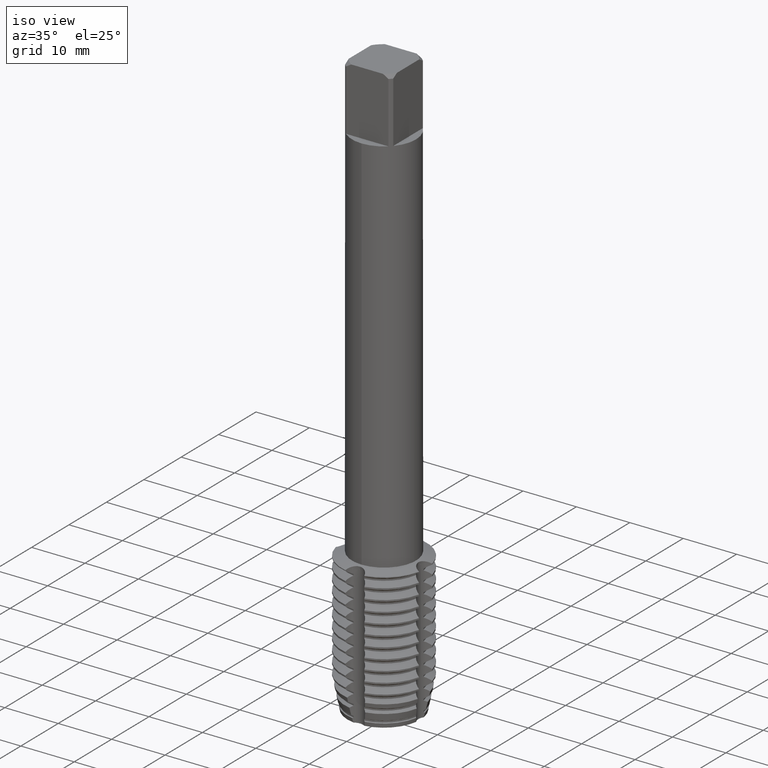
[diagram: clean part render]
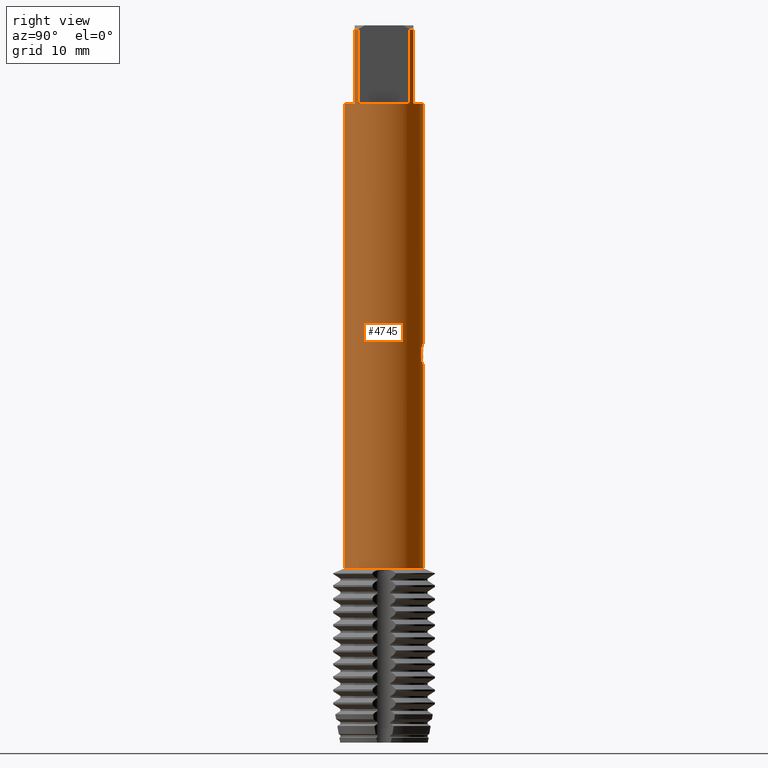
[diagram: tour spotlight — one face highlighted and labeled with its STEP entity id]
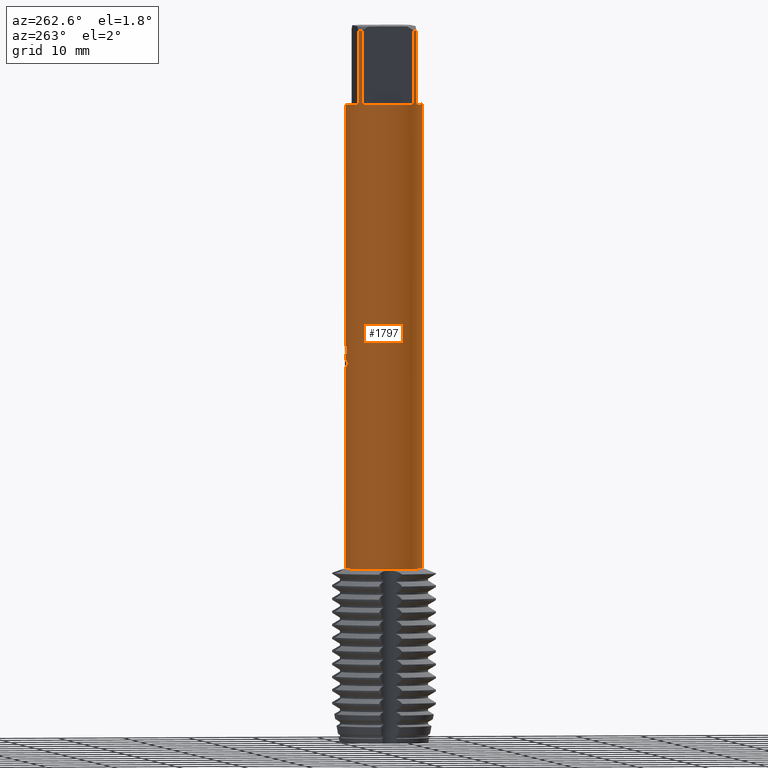
[diagram: tour spotlight — one face highlighted and labeled with its STEP entity id]
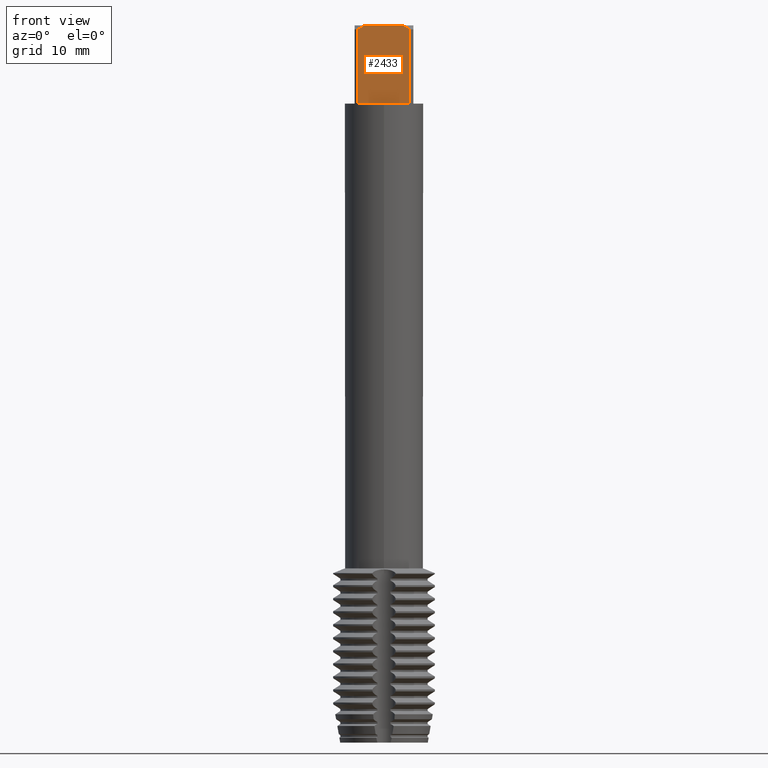
[diagram: tour spotlight — one face highlighted and labeled with its STEP entity id]
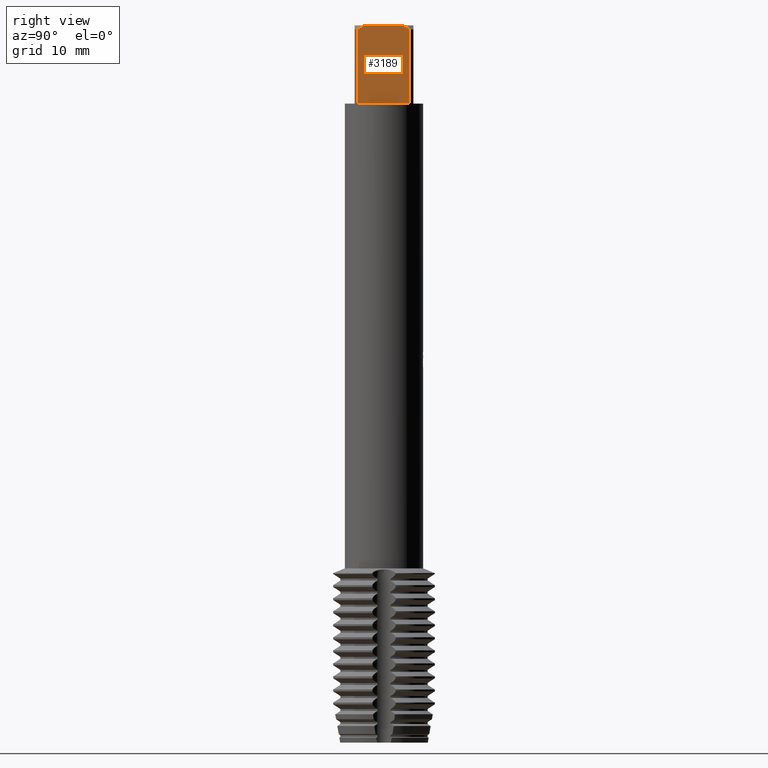
[diagram: tour spotlight — one face highlighted and labeled with its STEP entity id]
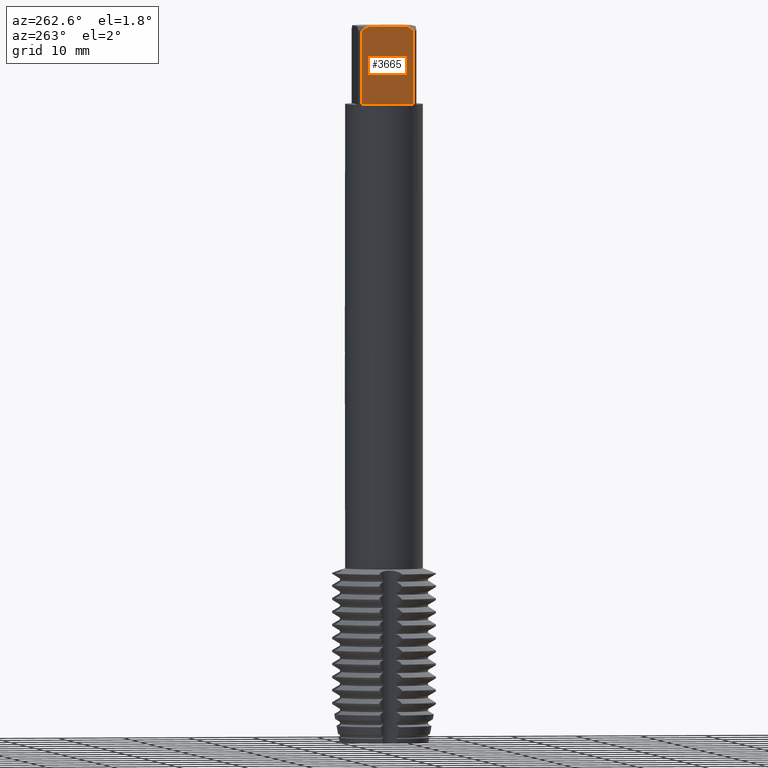
[diagram: tour spotlight — one face highlighted and labeled with its STEP entity id]
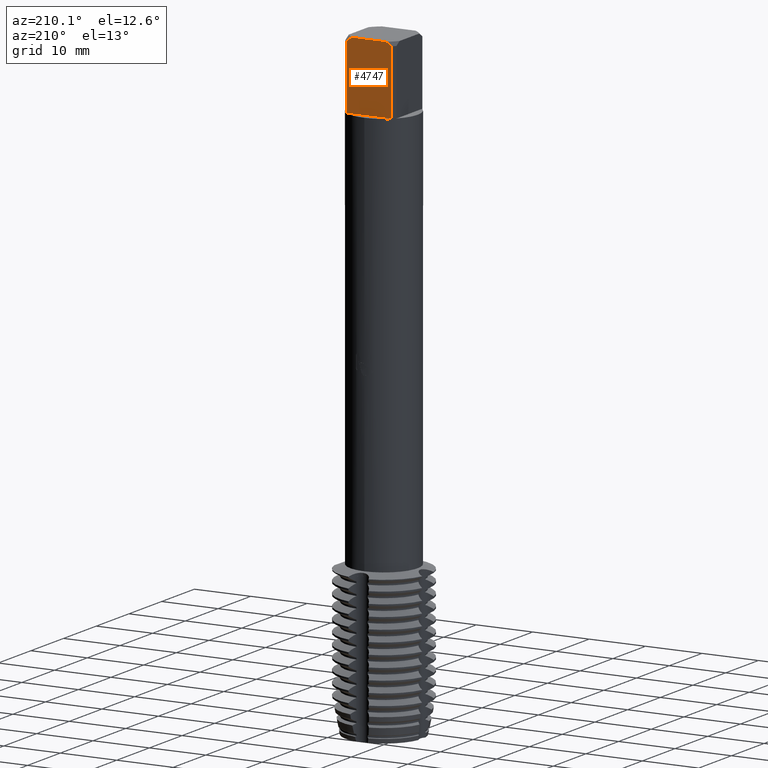
[diagram: tour spotlight — one face highlighted and labeled with its STEP entity id]
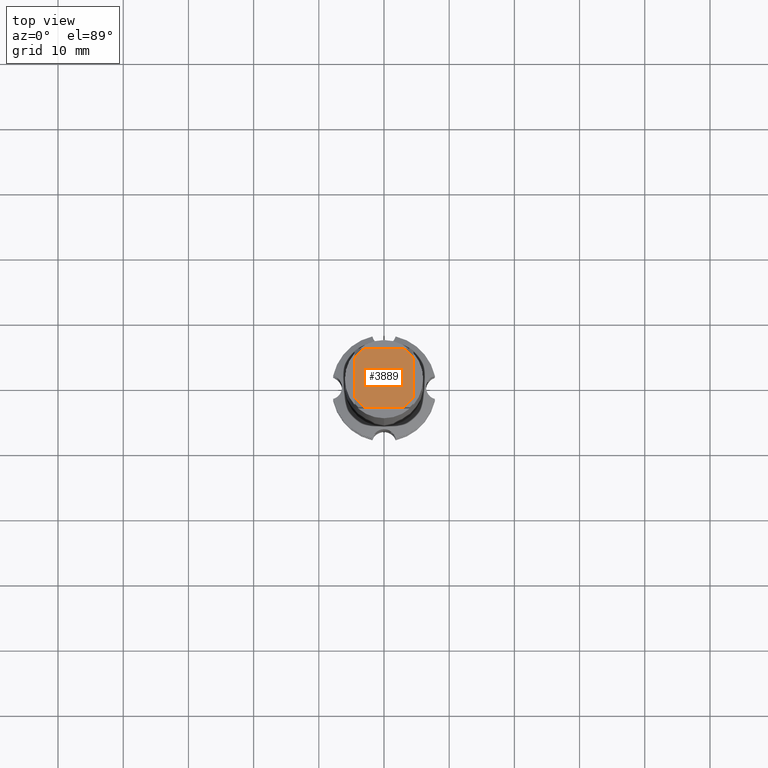
[diagram: tour spotlight — one face highlighted and labeled with its STEP entity id]
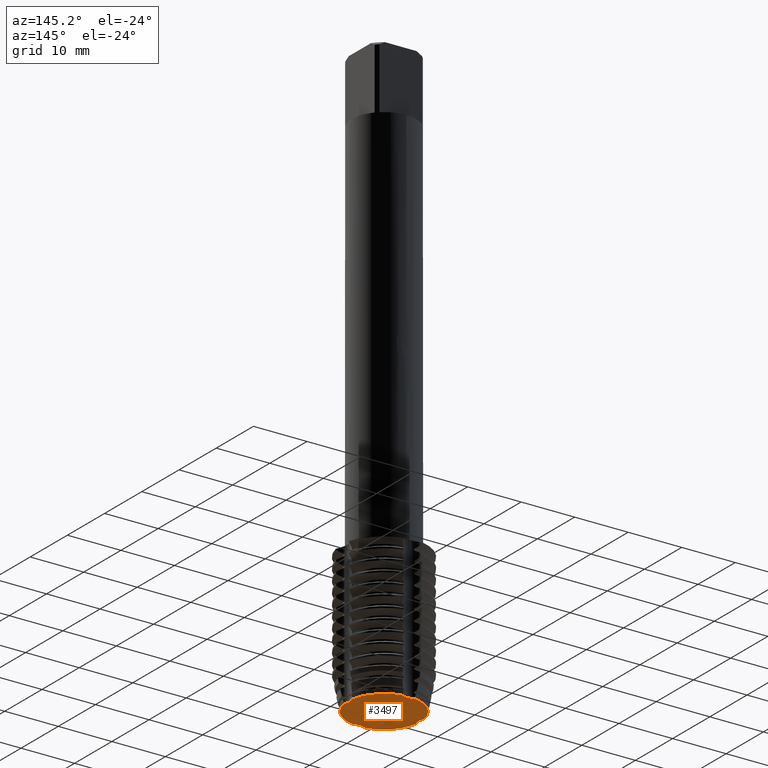
[diagram: tour spotlight — one face highlighted and labeled with its STEP entity id]
A machine part: a face-by-face anatomy tour. The part has 273 B-rep faces; the first image is the clean iso view, then the 8 largest visible faces are spotlighted one at a time (largest first), each with its STEP entity span.

Face 1 — right view, entity #4745. In plain terms, the highlighted cylindrical surface (partial cylindrical patch) has radius 6 mm, axis along (-0, -0, 1).
Definition (entity closure, byte-faithful):
#1879=EDGE_CURVE('',#2661,#2061,#5124,.T.);
#2001=EDGE_CURVE('',#4703,#2573,#5259,.T.);
#2061=VERTEX_POINT('',#5324);
#2301=VERTEX_POINT('',#5583);
#2371=EDGE_CURVE('',#3017,#2661,#5663,.T.);
#2573=VERTEX_POINT('',#5883);
#2597=VERTEX_POINT('',#5908);
#2661=VERTEX_POINT('',#5975);
#2719=EDGE_CURVE('',#3011,#4215,#6039,.T.);
#2799=EDGE_CURVE('',#4215,#4185,#6132,.T.);
#2803=VERTEX_POINT('',#6136);
#2869=EDGE_CURVE('',#3571,#4703,#6208,.T.);
#2939=VERTEX_POINT('',#6284);
#3011=VERTEX_POINT('',#6362);
#3017=VERTEX_POINT('',#6368);
#3057=EDGE_CURVE('',#4081,#3011,#6410,.T.);
#3067=VERTEX_POINT('',#6420);
#3079=EDGE_CURVE('',#3841,#2597,#6434,.T.);
#3163=EDGE_CURVE('',#3067,#2301,#6521,.T.);
#3169=VERTEX_POINT('',#6527);
#3227=EDGE_CURVE('',#3169,#3067,#6593,.T.);
#3253=VERTEX_POINT('',#6620);
#3425=EDGE_CURVE('',#4679,#2939,#6803,.T.);
#3571=VERTEX_POINT('',#6963);
#3749=EDGE_CURVE('',#3841,#2803,#7156,.T.);
#3769=EDGE_CURVE('',#3253,#4535,#7177,.T.);
#3805=EDGE_CURVE('',#4185,#3169,#7215,.T.);
#3841=VERTEX_POINT('',#7257);
#3953=EDGE_CURVE('',#2061,#3571,#7373,.T.);
#4081=VERTEX_POINT('',#7512);
#4185=VERTEX_POINT('',#7624);
#4215=VERTEX_POINT('',#7655);
#4233=EDGE_CURVE('',#2301,#3253,#7674,.T.);
#4265=EDGE_CURVE('',#2597,#3017,#7710,.T.);
#4323=EDGE_CURVE('',#4535,#2939,#7779,.T.);
#4373=EDGE_CURVE('',#2803,#4679,#7832,.T.);
#4465=EDGE_CURVE('',#4081,#2573,#7936,.T.);
#4535=VERTEX_POINT('',#8010);
#4679=VERTEX_POINT('',#8166);
#4703=VERTEX_POINT('',#8192);
#4745=ADVANCED_FACE('',(#8238),#8239,.T.);
#5124=B_SPLINE_CURVE_WITH_KNOTS('',3,(#8840,#8841,#8842,#8843,#8844,#8845,#8846,#8847,#8848,#8849),.UNSPECIFIED.,.F.,.F.,(4,2,2,2,4),(9.6477472606945,10.0184419028198,10.3891365449451,10.7602144985914,11.1312924522378),.UNSPECIFIED.);
#5259=B_SPLINE_CURVE_WITH_KNOTS('',3,(#9149,#9150,#9151,#9152,#9153,#9154,#9155,#9156,#9157,#9158,#9159,#9160,#9161,#9162,#9163,#9164,#9165,#9166,#9167,#9168,#9169,#9170,#9171,#9172,#9173,#9174,#9175),.UNSPECIFIED.,.F.,.F.,(4,2,3,2,2,2,2,2,2,2,2,2,4),(-0.650983325762088,-0.325491662881044,0.0,0.325491662881044,0.650983325762087,0.977158577924335,1.30333383008658,1.62836215157752,1.95339047306846,2.27875720438135,2.60412393569424,2.92949066700713,3.25485739832002),.UNSPECIFIED.);
#5324=CARTESIAN_POINT('',(1.6046520781759,5.78144373906776,-51.5731988403909));
#5583=CARTESIAN_POINT('',(4.5,-3.96862696659689,-0.600000000000001));
#5663=LINE('',#9941,#9942);
#5883=CARTESIAN_POINT('',(4.49807566984029E-015,6.0,-50.0529225741292));
#5908=CARTESIAN_POINT('',(0.348123752442997,5.98989230729443,-52.4247994788274));
#5975=CARTESIAN_POINT('',(1.04827293811075,5.90771731273803,-52.1354822149837));
#6039=LINE('',#10634,#10635);
#6132=CIRCLE('',#10816,6.0);
#6136=CARTESIAN_POINT('',(0.0,6.0,-83.278312163513));
#6208=B_SPLINE_CURVE_WITH_KNOTS('',3,(#10949,#10950,#10951,#10952,#10953,#10954,#10955,#10956,#10957,#10958),.UNSPECIFIED.,.F.,.F.,(4,2,2,2,4),(0.74215593308256,1.11323389962384,1.48431186616512,1.85500652080361,2.2257011754421),.UNSPECIFIED.);
#6284=CARTESIAN_POINT('',(7.34763812293426E-016,-6.0,-12.0));
#6362=CARTESIAN_POINT('',(3.96862696659689,4.5,-12.0));
#6368=CARTESIAN_POINT('',(1.04827293811075,5.90771731273803,-50.4088717915309));
#6410=CIRCLE('',#11347,6.0);
#6420=CARTESIAN_POINT('',(4.5,-3.96862696659689,-12.0));
#6434=B_SPLINE_CURVE_WITH_KNOTS('',3,(#11408,#11409,#11410,#11411,#11412,#11413,#11414,#11415,#11416,#11417,#11418,#11419,#11420,#11421,#11422,#11423),.UNSPECIFIED.,.F.,.F.,(4,2,2,2,2,2,2,4),(7.05021077803305,7.42137279253829,7.792619300654,8.16386580876971,8.53511231688542,8.90635882500113,9.27705350054317,9.64774817608521),.UNSPECIFIED.);
#6521=LINE('',#11619,#11620);
#6527=CARTESIAN_POINT('',(4.5,3.96862696659689,-12.0));
#6593=CIRCLE('',#11757,6.0);
#6620=CARTESIAN_POINT('',(3.96862696659689,-4.5,-0.600000000000001));
#6803=LINE('',#12137,#12138);
#6963=CARTESIAN_POINT('',(1.6046520781759,5.78144373906776,-49.4430581237785));
#7156=LINE('',#12778,#12779);
#7177=LINE('',#12806,#12807);
#7215=LINE('',#12868,#12869);
#7257=CARTESIAN_POINT('',(-2.49306829930475E-015,6.0,-52.462230432124));
#7373=LINE('',#13190,#13191);
#7512=CARTESIAN_POINT('',(-7.34763812293426E-016,6.0,-12.0));
#7624=CARTESIAN_POINT('',(4.5,3.96862696659689,-0.600000000000001));
#7655=CARTESIAN_POINT('',(3.96862696659689,4.5,-0.600000000000001));
#7674=CIRCLE('',#13789,6.0);
#7710=ELLIPSE('',#13849,18.2879674402186,6.0);
#7779=CIRCLE('',#13954,6.0);
#7832=CIRCLE('',#14049,6.0);
#7936=LINE('',#14240,#14241);
#8010=CARTESIAN_POINT('',(3.96862696659689,-4.5,-12.0));
#8166=CARTESIAN_POINT('',(7.34763812293426E-016,-6.0,-83.278312163513));
#8192=CARTESIAN_POINT('',(0.959318071661238,5.92281257827598,-48.8250003322476));
#8238=FACE_OUTER_BOUND('',#14873,.T.);
#8239=CYLINDRICAL_SURFACE('',#14874,6.0);
#8840=CARTESIAN_POINT('',(0.716083857732902,5.95711540165996,-52.3128424316858));
#8841=CARTESIAN_POINT('',(0.836328499172276,5.94266121693126,-52.2628634346158));
#8842=CARTESIAN_POINT('',(0.951395614063227,5.92507410301736,-52.2007637580905));
#8843=CARTESIAN_POINT('',(1.16394695133533,5.88700978726267,-52.0576209229708));
#8844=CARTESIAN_POINT('',(1.2614305683399,5.86656862180443,-51.9765672851817));
#8845=CARTESIAN_POINT('',(1.43402151205536,5.82678581952974,-51.8040390791293));
#8846=CARTESIAN_POINT('',(1.51514875819765,5.80601755401519,-51.7065145336745));
#8847=CARTESIAN_POINT('',(1.65839450310531,5.76673592856788,-51.493918337062));
#8848=CARTESIAN_POINT('',(1.72052516314967,5.74826344553995,-51.3788473293542));
#8849=CARTESIAN_POINT('',(1.77053560391516,5.73281812682635,-51.2585915795111));
#9149=CARTESIAN_POINT('',(0.798147324109406,5.94667645403859,-48.6013156148974));
#9150=CARTESIAN_POINT('',(0.874482236345515,5.93643098223459,-48.6777332727883));
#9151=CARTESIAN_POINT('',(0.940756999324154,5.92595697693717,-48.7745323243175));
#9152=CARTESIAN_POINT('',(1.02876232015548,5.91131439995525,-48.9868937007967));
#9153=CARTESIAN_POINT('',(1.05048117742628,5.90732505419103,-49.1024731941438));
#9154=CARTESIAN_POINT('',(1.05048117742628,5.90732505419103,-49.2109704151041));
#9155=CARTESIAN_POINT('',(1.05048117742628,5.90732505419103,-49.3194676360645));
#9156=CARTESIAN_POINT('',(1.02876232015548,5.91131439995525,-49.4350471294115));
#9157=CARTESIAN_POINT('',(0.940756999324154,5.92595697693717,-49.6474085058908));
#9158=CARTESIAN_POINT('',(0.874482236345516,5.93643098223459,-49.74420755742));
#9159=CARTESIAN_POINT('',(0.721652095239303,5.95694344312093,-49.8972033636162));
#9160=CARTESIAN_POINT('',(0.624769436538663,5.96833679445731,-49.9636263413674));
#9161=CARTESIAN_POINT('',(0.412204586977029,5.9867744503013,-50.0518404139267));
#9162=CARTESIAN_POINT('',(0.296503463792954,5.99365554898355,-50.0736199233296));
#9163=CARTESIAN_POINT('',(0.0795419974505622,6.00045091866293,-50.0736199233296));
#9164=CARTESIAN_POINT('',(-0.0359824024888451,6.00083305389387,-50.0519772427811));
#9165=CARTESIAN_POINT('',(-0.248451035077011,5.9957955399901,-49.9639927410263));
#9166=CARTESIAN_POINT('',(-0.345400979944834,5.99054136584803,-49.8976553176773));
#9167=CARTESIAN_POINT('',(-0.498563339545003,5.9797436864726,-49.7445990316588));
#9168=CARTESIAN_POINT('',(-0.564987473355022,5.97350408725106,-49.6476247356796));
#9169=CARTESIAN_POINT('',(-0.653117295316085,5.96451169312637,-49.4350429042198));
#9170=CARTESIAN_POINT('',(-0.674817839024696,5.9619309694204,-49.3194259922084));
#9171=CARTESIAN_POINT('',(-0.674817839024696,5.9619309694204,-49.1025148379998));
#9172=CARTESIAN_POINT('',(-0.653117295316089,5.96451169312637,-48.9868979259884));
#9173=CARTESIAN_POINT('',(-0.56498747335503,5.97350408725106,-48.7743160945287));
#9174=CARTESIAN_POINT('',(-0.498563339545003,5.9797436864726,-48.6773417985495));
#9175=CARTESIAN_POINT('',(-0.421942313464863,5.9851453352536,-48.600773836856));
#9941=CARTESIAN_POINT('',(1.04827293811075,5.90771731273803,-51.2721770032573));
#9942=VECTOR('',#16174,1.0);
#10634=CARTESIAN_POINT('',(3.96862696659689,4.5,-6.3));
#10635=VECTOR('',#16542,1.0);
#10816=AXIS2_PLACEMENT_3D('',#16675,#16676,#16677);
#10949=CARTESIAN_POINT('',(1.77053561351404,5.73281812386181,-49.7576654013773));
#10950=CARTESIAN_POINT('',(1.72052517100076,5.74826344320693,-49.6374096473773));
#10951=CARTESIAN_POINT('',(1.65839450878638,5.76673592696772,-49.522338635695));
#10952=CARTESIAN_POINT('',(1.51514875886918,5.80601755387331,-49.3097424317386));
#10953=CARTESIAN_POINT('',(1.43402150988673,5.82678582011051,-49.2122178829142));
#10954=CARTESIAN_POINT('',(1.26143056019417,5.86656862360124,-49.0396896709836));
#10955=CARTESIAN_POINT('',(1.16394693985965,5.88700978959831,-48.9586360304638));
#10956=CARTESIAN_POINT('',(0.951395595326623,5.92507410609222,-48.8154931905186));
#10957=CARTESIAN_POINT('',(0.83632847650457,5.94266122020422,-48.7533935118982));
#10958=CARTESIAN_POINT('',(0.716083830963113,5.95711540487787,-48.7034145131449));
#11347=AXIS2_PLACEMENT_3D('',#16896,#16897,#16898);
#11408=CARTESIAN_POINT('',(-1.65503551119769,5.76722268138439,-51.5999285107443));
#11409=CARTESIAN_POINT('',(-1.58349025649385,5.7877542168453,-51.7061521917117));
#11410=CARTESIAN_POINT('',(-1.50246821010246,5.80951453362685,-51.8035985416379));
#11411=CARTESIAN_POINT('',(-1.33003794248781,5.85139919111814,-51.9760938616887));
#11412=CARTESIAN_POINT('',(-1.23258291619753,5.87302669055419,-52.0571841544536));
#11413=CARTESIAN_POINT('',(-1.02006708647666,5.91364238791968,-52.200414430959));
#11414=CARTESIAN_POINT('',(-0.905006625653233,5.93259463161679,-52.2625651160949));
#11415=CARTESIAN_POINT('',(-0.66447119973702,5.96432679182753,-52.3626338304394));
#11416=CARTESIAN_POINT('',(-0.538788864715804,5.97710869125716,-52.4006308827471));
#11417=CARTESIAN_POINT('',(-0.285445708273923,5.99455106705073,-52.4505843365277));
#11418=CARTESIAN_POINT('',(-0.157781448335137,5.99920151261667,-52.4625268002104));
#11419=CARTESIAN_POINT('',(0.0895283006729495,6.00060438338305,-52.4625268002104));
#11420=CARTESIAN_POINT('',(0.217054807719713,5.99741291517916,-52.4506191753156));
#11421=CARTESIAN_POINT('',(0.470208825690184,5.98289044901793,-52.4007601052382));
#11422=CARTESIAN_POINT('',(0.595839534276319,5.97156955488298,-52.3628219543455));
#11423=CARTESIAN_POINT('',(0.716084185808332,5.95711536222316,-52.3128429528748));
#11619=CARTESIAN_POINT('',(4.5,-3.96862696659689,-6.3));
#11620=VECTOR('',#16956,1.0);
#11757=AXIS2_PLACEMENT_3D('',#17034,#17035,#17036);
#12137=CARTESIAN_POINT('',(7.34763812293426E-016,-6.0,-69.5391560817565));
#12138=VECTOR('',#17199,1.0);
#12778=CARTESIAN_POINT('',(-7.34763812293426E-016,6.0,-69.5391560817565));
#12779=VECTOR('',#17578,1.0);
#12806=CARTESIAN_POINT('',(3.96862696659689,-4.5,-6.3));
#12807=VECTOR('',#17592,1.0);
#12868=CARTESIAN_POINT('',(4.5,3.96862696659689,-6.3));
#12869=VECTOR('',#17621,1.0);
#13190=CARTESIAN_POINT('',(1.6046520781759,5.78144373906776,-50.5081284820847));
#13191=VECTOR('',#17770,1.0);
#13789=AXIS2_PLACEMENT_3D('',#18047,#18048,#18049);
#13849=AXIS2_PLACEMENT_3D('',#18093,#18094,#18095);
#13954=AXIS2_PLACEMENT_3D('',#18313,#18314,#18315);
#14049=AXIS2_PLACEMENT_3D('',#18358,#18359,#18360);
#14240=CARTESIAN_POINT('',(-7.34763812293426E-016,6.0,-69.5391560817565));
#14241=VECTOR('',#18485,1.0);
#14873=EDGE_LOOP('',(#18732,#18733,#18734,#18735,#18736,#18737,#18738,#18739,#18740,#18741,#18742,#18743,#18744,#18745,#18746,#18747,#18748,#18749,#18750,#18751));
#14874=AXIS2_PLACEMENT_3D('',#18752,#18753,#18754);
#16174=DIRECTION('',(0.0,0.0,-1.0));
#16542=DIRECTION('',(-0.0,-0.0,1.0));
#16675=CARTESIAN_POINT('',(0.0,0.0,-0.600000000000001));
#16676=DIRECTION('',(0.0,0.0,-1.0));
#16677=DIRECTION('',(0.0,1.0,0.0));
#16896=CARTESIAN_POINT('',(0.0,0.0,-12.0));
#16897=DIRECTION('',(0.0,0.0,-1.0));
#16898=DIRECTION('',(0.0,1.0,0.0));
#16956=DIRECTION('',(-0.0,-0.0,1.0));
#17034=CARTESIAN_POINT('',(0.0,0.0,-12.0));
#17035=DIRECTION('',(0.0,0.0,-1.0));
#17036=DIRECTION('',(0.0,1.0,0.0));
#17199=DIRECTION('',(-0.0,-0.0,1.0));
#17578=DIRECTION('',(0.0,0.0,-1.0));
#17592=DIRECTION('',(0.0,0.0,-1.0));
#17621=DIRECTION('',(0.0,0.0,-1.0));
#17770=DIRECTION('',(-0.0,-0.0,1.0));
#18047=CARTESIAN_POINT('',(0.0,0.0,-0.600000000000001));
#18048=DIRECTION('',(0.0,0.0,-1.0));
#18049=DIRECTION('',(0.0,1.0,0.0));
#18093=CARTESIAN_POINT('',(0.0,0.0,-53.4271463007922));
#18094=DIRECTION('',(0.944648353914092,0.0,-0.328084573619969));
#18095=DIRECTION('',(0.328084573619969,-0.0,0.944648353914092));
#18313=CARTESIAN_POINT('',(0.0,0.0,-12.0));
#18314=DIRECTION('',(0.0,0.0,-1.0));
#18315=DIRECTION('',(0.0,1.0,0.0));
#18358=CARTESIAN_POINT('',(0.0,0.0,-83.278312163513));
#18359=DIRECTION('',(0.0,0.0,-1.0));
#18360=DIRECTION('',(0.0,1.0,0.0));
#18485=DIRECTION('',(0.0,0.0,-1.0));
#18732=ORIENTED_EDGE('',*,*,#4465,.F.);
#18733=ORIENTED_EDGE('',*,*,#3057,.T.);
#18734=ORIENTED_EDGE('',*,*,#2719,.T.);
#18735=ORIENTED_EDGE('',*,*,#2799,.T.);
#18736=ORIENTED_EDGE('',*,*,#3805,.T.);
#18737=ORIENTED_EDGE('',*,*,#3227,.T.);
#18738=ORIENTED_EDGE('',*,*,#3163,.T.);
#18739=ORIENTED_EDGE('',*,*,#4233,.T.);
#18740=ORIENTED_EDGE('',*,*,#3769,.T.);
#18741=ORIENTED_EDGE('',*,*,#4323,.T.);
#18742=ORIENTED_EDGE('',*,*,#3425,.F.);
#18743=ORIENTED_EDGE('',*,*,#4373,.F.);
#18744=ORIENTED_EDGE('',*,*,#3749,.F.);
#18745=ORIENTED_EDGE('',*,*,#3079,.T.);
#18746=ORIENTED_EDGE('',*,*,#4265,.T.);
#18747=ORIENTED_EDGE('',*,*,#2371,.T.);
#18748=ORIENTED_EDGE('',*,*,#1879,.T.);
#18749=ORIENTED_EDGE('',*,*,#3953,.T.);
#18750=ORIENTED_EDGE('',*,*,#2869,.T.);
#18751=ORIENTED_EDGE('',*,*,#2001,.T.);
#18752=CARTESIAN_POINT('',(0.0,0.0,-69.5391560817565));
#18753=DIRECTION('',(-0.0,-0.0,1.0));
#18754=DIRECTION('',(0.0,1.0,0.0));

Face 2 — auxiliary view, entity #1797. In plain terms, the highlighted cylindrical surface (partial cylindrical patch) has radius 6 mm, axis along (-0, -0, 1).
Definition (entity closure, byte-faithful):
#1731=VERTEX_POINT('',#4962);
#1797=ADVANCED_FACE('',(#5032),#5033,.T.);
#1865=EDGE_CURVE('',#3183,#3405,#5110,.T.);
#2091=VERTEX_POINT('',#5357);
#2199=VERTEX_POINT('',#5473);
#2411=EDGE_CURVE('',#4005,#4487,#5703,.T.);
#2443=EDGE_CURVE('',#3135,#2883,#5737,.T.);
#2573=VERTEX_POINT('',#5883);
#2773=EDGE_CURVE('',#3405,#3841,#6104,.T.);
#2803=VERTEX_POINT('',#6136);
#2835=EDGE_CURVE('',#3711,#4349,#6172,.T.);
#2883=VERTEX_POINT('',#6223);
#2935=VERTEX_POINT('',#6279);
#2939=VERTEX_POINT('',#6284);
#3021=VERTEX_POINT('',#6372);
#3099=EDGE_CURVE('',#2939,#4005,#6454,.T.);
#3135=VERTEX_POINT('',#6492);
#3143=EDGE_CURVE('',#3315,#3021,#6500,.T.);
#3183=VERTEX_POINT('',#6542);
#3315=VERTEX_POINT('',#6687);
#3405=VERTEX_POINT('',#6783);
#3425=EDGE_CURVE('',#4679,#2939,#6803,.T.);
#3575=EDGE_CURVE('',#2199,#1731,#6967,.T.);
#3705=EDGE_CURVE('',#2883,#2199,#7109,.T.);
#3711=VERTEX_POINT('',#7115);
#3749=EDGE_CURVE('',#3841,#2803,#7156,.T.);
#3841=VERTEX_POINT('',#7257);
#3911=EDGE_CURVE('',#2935,#2091,#7331,.T.);
#3957=EDGE_CURVE('',#4679,#2803,#7377,.T.);
#4005=VERTEX_POINT('',#7429);
#4029=EDGE_CURVE('',#4349,#3183,#7454,.T.);
#4053=EDGE_CURVE('',#4487,#2935,#7480,.T.);
#4081=VERTEX_POINT('',#7512);
#4197=EDGE_CURVE('',#2091,#3135,#7636,.T.);
#4269=EDGE_CURVE('',#1731,#4081,#7715,.T.);
#4349=VERTEX_POINT('',#7806);
#4465=EDGE_CURVE('',#4081,#2573,#7936,.T.);
#4487=VERTEX_POINT('',#7960);
#4609=EDGE_CURVE('',#3021,#3711,#8090,.T.);
#4679=VERTEX_POINT('',#8166);
#4695=EDGE_CURVE('',#2573,#3315,#8184,.T.);
#4962=CARTESIAN_POINT('',(-3.96862696659689,4.5,-12.0));
#5032=FACE_OUTER_BOUND('',#8672,.T.);
#5033=CYLINDRICAL_SURFACE('',#8673,6.0);
#5110=ELLIPSE('',#8821,6.68957059225716,6.0);
#5357=CARTESIAN_POINT('',(-4.5,-3.96862696659689,-12.0));
#5473=CARTESIAN_POINT('',(-3.96862696659689,4.5,-0.600000000000001));
#5703=LINE('',#10025,#10026);
#5737=LINE('',#10100,#10101);
#5883=CARTESIAN_POINT('',(4.49807566984029E-015,6.0,-50.0529225741292));
#6104=B_SPLINE_CURVE_WITH_KNOTS('',3,(#10756,#10757,#10758,#10759,#10760,#10761,#10762,#10763,#10764,#10765,#10766,#10767,#10768,#10769,#10770,#10771),.UNSPECIFIED.,.F.,.F.,(4,2,2,2,2,2,2,4),(7.05021077803305,7.42137279253829,7.792619300654,8.16386580876971,8.53511231688542,8.90635882500113,9.27705350054317,9.64774817608521),.UNSPECIFIED.);
#6136=CARTESIAN_POINT('',(0.0,6.0,-83.278312163513));
#6172=B_SPLINE_CURVE_WITH_KNOTS('',3,(#10879,#10880,#10881,#10882,#10883,#10884,#10885,#10886,#10887,#10888,#10889,#10890,#10891,#10892,#10893,#10894,#10895,#10896,#10897,#10898),.UNSPECIFIED.,.F.,.F.,(4,2,2,2,2,2,2,2,2,4),(4.02840239043581,4.29680806049396,4.56521373055212,4.83361940061028,5.37043074072659,5.90614431571486,6.17400110320899,6.44185789070312,6.71120407596239,6.98055026122165),.UNSPECIFIED.);
#6223=CARTESIAN_POINT('',(-4.5,3.96862696659689,-0.600000000000001));
#6279=CARTESIAN_POINT('',(-4.5,-3.96862696659689,-0.600000000000001));
#6284=CARTESIAN_POINT('',(7.34763812293426E-016,-6.0,-12.0));
#6372=CARTESIAN_POINT('',(-0.674800788273616,5.96193289933267,-49.2055466384365));
#6454=CIRCLE('',#11467,6.0);
#6492=CARTESIAN_POINT('',(-4.5,3.96862696659689,-12.0));
#6500=B_SPLINE_CURVE_WITH_KNOTS('',3,(#11541,#11542,#11543,#11544,#11545,#11546,#11547,#11548,#11549,#11550,#11551,#11552,#11553,#11554,#11555,#11556,#11557,#11558,#11559,#11560,#11561,#11562,#11563,#11564,#11565,#11566,#11567),.UNSPECIFIED.,.F.,.F.,(4,2,3,2,2,2,2,2,2,2,2,2,4),(-0.650983325762088,-0.325491662881044,0.0,0.325491662881044,0.650983325762087,0.977158577924335,1.30333383008658,1.62836215157752,1.95339047306846,2.27875720438135,2.60412393569424,2.92949066700713,3.25485739832002),.UNSPECIFIED.);
#6542=CARTESIAN_POINT('',(-7.34748625399642E-016,6.0,-50.8804693603894));
#6687=CARTESIAN_POINT('',(-0.583654733259654,5.97154478777005,-49.5969404979607));
#6783=CARTESIAN_POINT('',(-1.6044633029316,5.78149613072134,-51.6714964690554));
#6803=LINE('',#12137,#12138);
#6967=LINE('',#12429,#12430);
#7109=CIRCLE('',#12690,6.0);
#7115=CARTESIAN_POINT('',(-1.24208808469056,5.87002701781429,-49.2055466384365));
#7156=LINE('',#12778,#12779);
#7257=CARTESIAN_POINT('',(-2.49306829930475E-015,6.0,-52.462230432124));
#7331=LINE('',#13087,#13088);
#7377=CIRCLE('',#13204,6.0);
#7429=CARTESIAN_POINT('',(-3.96862696659689,-4.5,-12.0));
#7454=LINE('',#13347,#13348);
#7480=CIRCLE('',#13383,6.0);
#7512=CARTESIAN_POINT('',(-7.34763812293426E-016,6.0,-12.0));
#7636=CIRCLE('',#13694,6.0);
#7715=CIRCLE('',#13855,6.0);
#7806=CARTESIAN_POINT('',(5.00903232975301E-016,6.0,-50.6250961862258));
#7936=LINE('',#14240,#14241);
#7960=CARTESIAN_POINT('',(-3.96862696659689,-4.5,-0.600000000000001));
#8090=CIRCLE('',#14573,6.0);
#8166=CARTESIAN_POINT('',(7.34763812293426E-016,-6.0,-83.278312163513));
#8184=B_SPLINE_CURVE_WITH_KNOTS('',3,(#14756,#14757,#14758,#14759,#14760,#14761,#14762,#14763,#14764,#14765,#14766,#14767,#14768,#14769,#14770,#14771,#14772,#14773,#14774,#14775,#14776,#14777,#14778,#14779,#14780,#14781,#14782),.UNSPECIFIED.,.F.,.F.,(4,2,3,2,2,2,2,2,2,2,2,2,4),(-0.650983325762088,-0.325491662881044,0.0,0.325491662881044,0.650983325762087,0.977158577924335,1.30333383008658,1.62836215157752,1.95339047306846,2.27875720438135,2.60412393569424,2.92949066700713,3.25485739832002),.UNSPECIFIED.);
#8672=EDGE_LOOP('',(#15224,#15225,#15226,#15227,#15228,#15229,#15230,#15231,#15232,#15233,#15234,#15235,#15236,#15237,#15238,#15239,#15240,#15241,#15242,#15243));
#8673=AXIS2_PLACEMENT_3D('',#15244,#15245,#15246);
#8821=AXIS2_PLACEMENT_3D('',#15544,#15545,#15546);
#10025=CARTESIAN_POINT('',(-3.96862696659689,-4.5,-6.3));
#10026=VECTOR('',#16195,1.0);
#10100=CARTESIAN_POINT('',(-4.5,3.96862696659689,-6.3));
#10101=VECTOR('',#16229,1.0);
#10756=CARTESIAN_POINT('',(-1.65503551119769,5.76722268138439,-51.5999285107443));
#10757=CARTESIAN_POINT('',(-1.58349025649385,5.7877542168453,-51.7061521917117));
#10758=CARTESIAN_POINT('',(-1.50246821010246,5.80951453362685,-51.8035985416379));
#10759=CARTESIAN_POINT('',(-1.33003794248781,5.85139919111814,-51.9760938616887));
#10760=CARTESIAN_POINT('',(-1.23258291619753,5.87302669055419,-52.0571841544536));
#10761=CARTESIAN_POINT('',(-1.02006708647666,5.91364238791968,-52.200414430959));
#10762=CARTESIAN_POINT('',(-0.905006625653233,5.93259463161679,-52.2625651160949));
#10763=CARTESIAN_POINT('',(-0.66447119973702,5.96432679182753,-52.3626338304394));
#10764=CARTESIAN_POINT('',(-0.538788864715804,5.97710869125716,-52.4006308827471));
#10765=CARTESIAN_POINT('',(-0.285445708273923,5.99455106705073,-52.4505843365277));
#10766=CARTESIAN_POINT('',(-0.157781448335137,5.99920151261667,-52.4625268002104));
#10767=CARTESIAN_POINT('',(0.0895283006729495,6.00060438338305,-52.4625268002104));
#10768=CARTESIAN_POINT('',(0.217054807719713,5.99741291517916,-52.4506191753156));
#10769=CARTESIAN_POINT('',(0.470208825690184,5.98289044901793,-52.4007601052382));
#10770=CARTESIAN_POINT('',(0.595839534276319,5.97156955488298,-52.3628219543455));
#10771=CARTESIAN_POINT('',(0.716084185808332,5.95711536222316,-52.3128429528748));
#10879=CARTESIAN_POINT('',(-1.21548675278351,5.87559290232125,-48.9428064967385));
#10880=CARTESIAN_POINT('',(-1.23353718120567,5.87185880144904,-49.034658079453));
#10881=CARTESIAN_POINT('',(-1.24213082148224,5.87001797461676,-49.1270936761933));
#10882=CARTESIAN_POINT('',(-1.24213082148224,5.87001797461676,-49.3060307895654));
#10883=CARTESIAN_POINT('',(-1.23353718120567,5.87185880144904,-49.3984663863057));
#10884=CARTESIAN_POINT('',(-1.19743632436134,5.87932700319345,-49.5821695517347));
#10885=CARTESIAN_POINT('',(-1.16993788657455,5.88494794748439,-49.6734391068678));
#10886=CARTESIAN_POINT('',(-1.06101779568533,5.90590459421591,-49.9358046093159));
#10887=CARTESIAN_POINT('',(-0.951704581262653,5.92540632213463,-50.0951914779948));
#10888=CARTESIAN_POINT('',(-0.699968335277633,5.96038253029069,-50.3466228115419));
#10889=CARTESIAN_POINT('',(-0.540672629038556,5.97815385671547,-50.4556864297507));
#10890=CARTESIAN_POINT('',(-0.278552526266265,5.99416975869595,-50.564303954169));
#10891=CARTESIAN_POINT('',(-0.187383281454797,5.99777467036961,-50.5917170354656));
#10892=CARTESIAN_POINT('',(-0.00395643902436742,6.00069977896631,-50.6276902169497));
#10893=CARTESIAN_POINT('',(0.0883028063781633,6.00001454431643,-50.6362423561039));
#10894=CARTESIAN_POINT('',(0.267292045612955,5.99471565472164,-50.6362423561039));
#10895=CARTESIAN_POINT('',(0.359922648777805,5.98990501255664,-50.6275965464116));
#10896=CARTESIAN_POINT('',(0.543858738649497,5.97601238661255,-50.5913695896005));
#10897=CARTESIAN_POINT('',(0.635166547151133,5.96693564402567,-50.5637982219413));
#10898=CARTESIAN_POINT('',(0.722602270894569,5.95632822786807,-50.5274432011969));
#11467=AXIS2_PLACEMENT_3D('',#16922,#16923,#16924);
#11541=CARTESIAN_POINT('',(0.798147324109406,5.94667645403859,-48.6013156148974));
#11542=CARTESIAN_POINT('',(0.874482236345515,5.93643098223459,-48.6777332727883));
#11543=CARTESIAN_POINT('',(0.940756999324154,5.92595697693717,-48.7745323243175));
#11544=CARTESIAN_POINT('',(1.02876232015548,5.91131439995525,-48.9868937007967));
#11545=CARTESIAN_POINT('',(1.05048117742628,5.90732505419103,-49.1024731941438));
#11546=CARTESIAN_POINT('',(1.05048117742628,5.90732505419103,-49.2109704151041));
#11547=CARTESIAN_POINT('',(1.05048117742628,5.90732505419103,-49.3194676360645));
#11548=CARTESIAN_POINT('',(1.02876232015548,5.91131439995525,-49.4350471294115));
#11549=CARTESIAN_POINT('',(0.940756999324154,5.92595697693717,-49.6474085058908));
#11550=CARTESIAN_POINT('',(0.874482236345516,5.93643098223459,-49.74420755742));
#11551=CARTESIAN_POINT('',(0.721652095239303,5.95694344312093,-49.8972033636162));
#11552=CARTESIAN_POINT('',(0.624769436538663,5.96833679445731,-49.9636263413674));
#11553=CARTESIAN_POINT('',(0.412204586977029,5.9867744503013,-50.0518404139267));
#11554=CARTESIAN_POINT('',(0.296503463792954,5.99365554898355,-50.0736199233296));
#11555=CARTESIAN_POINT('',(0.0795419974505622,6.00045091866293,-50.0736199233296));
#11556=CARTESIAN_POINT('',(-0.0359824024888451,6.00083305389387,-50.0519772427811));
#11557=CARTESIAN_POINT('',(-0.248451035077011,5.9957955399901,-49.9639927410263));
#11558=CARTESIAN_POINT('',(-0.345400979944834,5.99054136584803,-49.8976553176773));
#11559=CARTESIAN_POINT('',(-0.498563339545003,5.9797436864726,-49.7445990316588));
#11560=CARTESIAN_POINT('',(-0.564987473355022,5.97350408725106,-49.6476247356796));
#11561=CARTESIAN_POINT('',(-0.653117295316085,5.96451169312637,-49.4350429042198));
#11562=CARTESIAN_POINT('',(-0.674817839024696,5.9619309694204,-49.3194259922084));
#11563=CARTESIAN_POINT('',(-0.674817839024696,5.9619309694204,-49.1025148379998));
#11564=CARTESIAN_POINT('',(-0.653117295316089,5.96451169312637,-48.9868979259884));
#11565=CARTESIAN_POINT('',(-0.56498747335503,5.97350408725106,-48.7743160945287));
#11566=CARTESIAN_POINT('',(-0.498563339545003,5.9797436864726,-48.6773417985495));
#11567=CARTESIAN_POINT('',(-0.421942313464863,5.9851453352536,-48.600773836856));
#12137=CARTESIAN_POINT('',(7.34763812293426E-016,-6.0,-69.5391560817565));
#12138=VECTOR('',#17199,1.0);
#12429=CARTESIAN_POINT('',(-3.96862696659689,4.5,-6.3));
#12430=VECTOR('',#17375,1.0);
#12690=AXIS2_PLACEMENT_3D('',#17529,#17530,#17531);
#12778=CARTESIAN_POINT('',(-7.34763812293426E-016,6.0,-69.5391560817565));
#12779=VECTOR('',#17578,1.0);
#13087=CARTESIAN_POINT('',(-4.5,-3.96862696659689,-6.3));
#13088=VECTOR('',#17753,1.0);
#13204=AXIS2_PLACEMENT_3D('',#17771,#17772,#17773);
#13347=CARTESIAN_POINT('',(-7.34763812293426E-016,6.0,-69.5391560817565));
#13348=VECTOR('',#17839,1.0);
#13383=AXIS2_PLACEMENT_3D('',#17870,#17871,#17872);
#13694=AXIS2_PLACEMENT_3D('',#18015,#18016,#18017);
#13855=AXIS2_PLACEMENT_3D('',#18104,#18105,#18106);
#14240=CARTESIAN_POINT('',(-7.34763812293426E-016,6.0,-69.5391560817565));
#14241=VECTOR('',#18485,1.0);
#14573=AXIS2_PLACEMENT_3D('',#18601,#18602,#18603);
#14756=CARTESIAN_POINT('',(0.798147324109406,5.94667645403859,-48.6013156148974));
#14757=CARTESIAN_POINT('',(0.874482236345515,5.93643098223459,-48.6777332727883));
#14758=CARTESIAN_POINT('',(0.940756999324154,5.92595697693717,-48.7745323243175));
#14759=CARTESIAN_POINT('',(1.02876232015548,5.91131439995525,-48.9868937007967));
#14760=CARTESIAN_POINT('',(1.05048117742628,5.90732505419103,-49.1024731941438));
#14761=CARTESIAN_POINT('',(1.05048117742628,5.90732505419103,-49.2109704151041));
#14762=CARTESIAN_POINT('',(1.05048117742628,5.90732505419103,-49.3194676360645));
#14763=CARTESIAN_POINT('',(1.02876232015548,5.91131439995525,-49.4350471294115));
#14764=CARTESIAN_POINT('',(0.940756999324154,5.92595697693717,-49.6474085058908));
#14765=CARTESIAN_POINT('',(0.874482236345516,5.93643098223459,-49.74420755742));
#14766=CARTESIAN_POINT('',(0.721652095239303,5.95694344312093,-49.8972033636162));
#14767=CARTESIAN_POINT('',(0.624769436538663,5.96833679445731,-49.9636263413674));
#14768=CARTESIAN_POINT('',(0.412204586977029,5.9867744503013,-50.0518404139267));
#14769=CARTESIAN_POINT('',(0.296503463792954,5.99365554898355,-50.0736199233296));
#14770=CARTESIAN_POINT('',(0.0795419974505622,6.00045091866293,-50.0736199233296));
#14771=CARTESIAN_POINT('',(-0.0359824024888451,6.00083305389387,-50.0519772427811));
#14772=CARTESIAN_POINT('',(-0.248451035077011,5.9957955399901,-49.9639927410263));
#14773=CARTESIAN_POINT('',(-0.345400979944834,5.99054136584803,-49.8976553176773));
#14774=CARTESIAN_POINT('',(-0.498563339545003,5.9797436864726,-49.7445990316588));
#14775=CARTESIAN_POINT('',(-0.564987473355022,5.97350408725106,-49.6476247356796));
#14776=CARTESIAN_POINT('',(-0.653117295316085,5.96451169312637,-49.4350429042198));
#14777=CARTESIAN_POINT('',(-0.674817839024696,5.9619309694204,-49.3194259922084));
#14778=CARTESIAN_POINT('',(-0.674817839024696,5.9619309694204,-49.1025148379998));
#14779=CARTESIAN_POINT('',(-0.653117295316089,5.96451169312637,-48.9868979259884));
#14780=CARTESIAN_POINT('',(-0.56498747335503,5.97350408725106,-48.7743160945287));
#14781=CARTESIAN_POINT('',(-0.498563339545003,5.9797436864726,-48.6773417985495));
#14782=CARTESIAN_POINT('',(-0.421942313464863,5.9851453352536,-48.600773836856));
#15224=ORIENTED_EDGE('',*,*,#4465,.T.);
#15225=ORIENTED_EDGE('',*,*,#4695,.T.);
#15226=ORIENTED_EDGE('',*,*,#3143,.T.);
#15227=ORIENTED_EDGE('',*,*,#4609,.T.);
#15228=ORIENTED_EDGE('',*,*,#2835,.T.);
#15229=ORIENTED_EDGE('',*,*,#4029,.T.);
#15230=ORIENTED_EDGE('',*,*,#1865,.T.);
#15231=ORIENTED_EDGE('',*,*,#2773,.T.);
#15232=ORIENTED_EDGE('',*,*,#3749,.T.);
#15233=ORIENTED_EDGE('',*,*,#3957,.F.);
#15234=ORIENTED_EDGE('',*,*,#3425,.T.);
#15235=ORIENTED_EDGE('',*,*,#3099,.T.);
#15236=ORIENTED_EDGE('',*,*,#2411,.T.);
#15237=ORIENTED_EDGE('',*,*,#4053,.T.);
#15238=ORIENTED_EDGE('',*,*,#3911,.T.);
#15239=ORIENTED_EDGE('',*,*,#4197,.T.);
#15240=ORIENTED_EDGE('',*,*,#2443,.T.);
#15241=ORIENTED_EDGE('',*,*,#3705,.T.);
#15242=ORIENTED_EDGE('',*,*,#3575,.T.);
#15243=ORIENTED_EDGE('',*,*,#4269,.T.);
#15244=CARTESIAN_POINT('',(0.0,0.0,-69.5391560817565));
#15245=DIRECTION('',(-0.0,-0.0,1.0));
#15246=DIRECTION('',(0.0,1.0,0.0));
#15544=CARTESIAN_POINT('',(0.0,0.0,-50.8804693603894));
#15545=DIRECTION('',(-0.442195774284071,0.0,0.896918556617774));
#15546=DIRECTION('',(0.896918556617774,-0.0,0.442195774284071));
#16195=DIRECTION('',(-0.0,-0.0,1.0));
#16229=DIRECTION('',(-0.0,-0.0,1.0));
#16922=CARTESIAN_POINT('',(0.0,0.0,-12.0));
#16923=DIRECTION('',(0.0,0.0,-1.0));
#16924=DIRECTION('',(0.0,1.0,0.0));
#17199=DIRECTION('',(-0.0,-0.0,1.0));
#17375=DIRECTION('',(0.0,0.0,-1.0));
#17529=CARTESIAN_POINT('',(0.0,0.0,-0.600000000000001));
#17530=DIRECTION('',(0.0,0.0,-1.0));
#17531=DIRECTION('',(0.0,1.0,0.0));
#17578=DIRECTION('',(0.0,0.0,-1.0));
#17753=DIRECTION('',(0.0,0.0,-1.0));
#17771=CARTESIAN_POINT('',(0.0,0.0,-83.278312163513));
#17772=DIRECTION('',(0.0,0.0,-1.0));
#17773=DIRECTION('',(0.0,1.0,0.0));
#17839=DIRECTION('',(0.0,0.0,-1.0));
#17870=CARTESIAN_POINT('',(0.0,0.0,-0.600000000000001));
#17871=DIRECTION('',(0.0,0.0,-1.0));
#17872=DIRECTION('',(0.0,1.0,0.0));
#18015=CARTESIAN_POINT('',(0.0,0.0,-12.0));
#18016=DIRECTION('',(0.0,0.0,-1.0));
#18017=DIRECTION('',(0.0,1.0,0.0));
#18104=CARTESIAN_POINT('',(0.0,0.0,-12.0));
#18105=DIRECTION('',(0.0,0.0,-1.0));
#18106=DIRECTION('',(0.0,1.0,0.0));
#18485=DIRECTION('',(0.0,0.0,-1.0));
#18601=CARTESIAN_POINT('',(0.0,0.0,-49.2055466384365));
#18602=DIRECTION('',(0.0,-0.0,1.0));
#18603=DIRECTION('',(0.0,1.0,0.0));

Face 3 — front view, entity #2433. In plain terms, the highlighted planar face has unit normal (0, -1, 0).
Definition (entity closure, byte-faithful):
#2411=EDGE_CURVE('',#4005,#4487,#5703,.T.);
#2433=ADVANCED_FACE('',(#5726),#5727,.T.);
#3023=VERTEX_POINT('',#6374);
#3107=EDGE_CURVE('',#4487,#3023,#6463,.T.);
#3167=EDGE_CURVE('',#3621,#3253,#6525,.T.);
#3253=VERTEX_POINT('',#6620);
#3621=VERTEX_POINT('',#7014);
#3769=EDGE_CURVE('',#3253,#4535,#7177,.T.);
#4005=VERTEX_POINT('',#7429);
#4435=EDGE_CURVE('',#4535,#4005,#7902,.T.);
#4487=VERTEX_POINT('',#7960);
#4529=EDGE_CURVE('',#3023,#3621,#8004,.T.);
#4535=VERTEX_POINT('',#8010);
#5703=LINE('',#10025,#10026);
#5726=FACE_OUTER_BOUND('',#10073,.T.);
#5727=PLANE('',#10074);
#6374=CARTESIAN_POINT('',(-2.98496231131986,-4.5,0.0));
#6463=(B_SPLINE_CURVE(2,(#11478,#11479,#11480),.UNSPECIFIED.,.F.,.F.)B_SPLINE_CURVE_WITH_KNOTS((3,3),(0.0,1.15243934814456),.UNSPECIFIED.)RATIONAL_B_SPLINE_CURVE((1.0,1.00374358632419,1.0))BOUNDED_CURVE()REPRESENTATION_ITEM('')GEOMETRIC_REPRESENTATION_ITEM()CURVE());
#6525=(B_SPLINE_CURVE(2,(#11632,#11633,#11634),.UNSPECIFIED.,.F.,.F.)B_SPLINE_CURVE_WITH_KNOTS((3,3),(0.0,1.15243934814456),.UNSPECIFIED.)RATIONAL_B_SPLINE_CURVE((1.0,1.00374358632419,1.0))BOUNDED_CURVE()REPRESENTATION_ITEM('')GEOMETRIC_REPRESENTATION_ITEM()CURVE());
#6620=CARTESIAN_POINT('',(3.96862696659689,-4.5,-0.600000000000001));
#7014=CARTESIAN_POINT('',(2.98496231131986,-4.5,0.0));
#7177=LINE('',#12806,#12807);
#7429=CARTESIAN_POINT('',(-3.96862696659689,-4.5,-12.0));
#7902=LINE('',#14177,#14178);
#7960=CARTESIAN_POINT('',(-3.96862696659689,-4.5,-0.600000000000001));
#8004=LINE('',#14399,#14400);
#8010=CARTESIAN_POINT('',(3.96862696659689,-4.5,-12.0));
#10025=CARTESIAN_POINT('',(-3.96862696659689,-4.5,-6.3));
#10026=VECTOR('',#16195,1.0);
#10073=EDGE_LOOP('',(#16219,#16220,#16221,#16222,#16223,#16224));
#10074=AXIS2_PLACEMENT_3D('',#16225,#16226,#16227);
#11478=CARTESIAN_POINT('',(-3.96862696659688,-4.5,-0.600000000000001));
#11479=CARTESIAN_POINT('',(-3.45090872697739,-4.5,-0.257561572191173));
#11480=CARTESIAN_POINT('',(-2.98496231131985,-4.5,-1.66533453693773E-016));
#11632=CARTESIAN_POINT('',(2.98496231131985,-4.5,-1.66533453693773E-016));
#11633=CARTESIAN_POINT('',(3.45090872697739,-4.5,-0.257561572191173));
#11634=CARTESIAN_POINT('',(3.96862696659688,-4.5,-0.600000000000001));
#12806=CARTESIAN_POINT('',(3.96862696659689,-4.5,-6.3));
#12807=VECTOR('',#17592,1.0);
#14177=CARTESIAN_POINT('',(0.0,-4.5,-12.0));
#14178=VECTOR('',#18448,1.0);
#14399=CARTESIAN_POINT('',(0.0,-4.5,0.0));
#14400=VECTOR('',#18532,1.0);
#16195=DIRECTION('',(-0.0,-0.0,1.0));
#16219=ORIENTED_EDGE('',*,*,#3769,.F.);
#16220=ORIENTED_EDGE('',*,*,#3167,.F.);
#16221=ORIENTED_EDGE('',*,*,#4529,.F.);
#16222=ORIENTED_EDGE('',*,*,#3107,.F.);
#16223=ORIENTED_EDGE('',*,*,#2411,.F.);
#16224=ORIENTED_EDGE('',*,*,#4435,.F.);
#16225=CARTESIAN_POINT('',(0.0,-4.5,-5.5));
#16226=DIRECTION('',(0.0,-1.0,0.0));
#16227=DIRECTION('',(0.0,0.0,-1.0));
#17592=DIRECTION('',(0.0,0.0,-1.0));
#18448=DIRECTION('',(-1.0,0.0,0.0));
#18532=DIRECTION('',(1.0,0.0,0.0));

Face 4 — right view, entity #3189. In plain terms, the highlighted planar face has unit normal (1, 0, 0).
Definition (entity closure, byte-faithful):
#1743=EDGE_CURVE('',#2581,#4185,#4974,.T.);
#2301=VERTEX_POINT('',#5583);
#2339=VERTEX_POINT('',#5628);
#2581=VERTEX_POINT('',#5891);
#2699=EDGE_CURVE('',#2301,#2339,#6016,.T.);
#3067=VERTEX_POINT('',#6420);
#3163=EDGE_CURVE('',#3067,#2301,#6521,.T.);
#3169=VERTEX_POINT('',#6527);
#3189=ADVANCED_FACE('',(#6548),#6549,.T.);
#3759=EDGE_CURVE('',#3169,#3067,#7166,.T.);
#3805=EDGE_CURVE('',#4185,#3169,#7215,.T.);
#4125=EDGE_CURVE('',#2339,#2581,#7560,.T.);
#4185=VERTEX_POINT('',#7624);
#4974=(B_SPLINE_CURVE(2,(#8578,#8579,#8580),.UNSPECIFIED.,.F.,.F.)B_SPLINE_CURVE_WITH_KNOTS((3,3),(0.0,1.15243934814456),.UNSPECIFIED.)RATIONAL_B_SPLINE_CURVE((1.0,1.00374358632419,1.0))BOUNDED_CURVE()REPRESENTATION_ITEM('')GEOMETRIC_REPRESENTATION_ITEM()CURVE());
#5583=CARTESIAN_POINT('',(4.5,-3.96862696659689,-0.600000000000001));
#5628=CARTESIAN_POINT('',(4.5,-2.98496231131986,0.0));
#5891=CARTESIAN_POINT('',(4.5,2.98496231131986,0.0));
#6016=(B_SPLINE_CURVE(2,(#10582,#10583,#10584),.UNSPECIFIED.,.F.,.F.)B_SPLINE_CURVE_WITH_KNOTS((3,3),(0.0,1.15243934814456),.UNSPECIFIED.)RATIONAL_B_SPLINE_CURVE((1.0,1.00374358632419,1.0))BOUNDED_CURVE()REPRESENTATION_ITEM('')GEOMETRIC_REPRESENTATION_ITEM()CURVE());
#6420=CARTESIAN_POINT('',(4.5,-3.96862696659689,-12.0));
#6521=LINE('',#11619,#11620);
#6527=CARTESIAN_POINT('',(4.5,3.96862696659689,-12.0));
#6548=FACE_OUTER_BOUND('',#11690,.T.);
#6549=PLANE('',#11691);
#7166=LINE('',#12793,#12794);
#7215=LINE('',#12868,#12869);
#7560=LINE('',#13539,#13540);
#7624=CARTESIAN_POINT('',(4.5,3.96862696659689,-0.600000000000001));
#8578=CARTESIAN_POINT('',(4.5,2.98496231131985,-1.66533453693773E-016));
#8579=CARTESIAN_POINT('',(4.5,3.45090872697739,-0.257561572191173));
#8580=CARTESIAN_POINT('',(4.5,3.96862696659688,-0.600000000000001));
#10582=CARTESIAN_POINT('',(4.5,-3.96862696659688,-0.600000000000001));
#10583=CARTESIAN_POINT('',(4.5,-3.45090872697739,-0.257561572191173));
#10584=CARTESIAN_POINT('',(4.5,-2.98496231131985,-1.66533453693773E-016));
#11619=CARTESIAN_POINT('',(4.5,-3.96862696659689,-6.3));
#11620=VECTOR('',#16956,1.0);
#11690=EDGE_LOOP('',(#16971,#16972,#16973,#16974,#16975,#16976));
#11691=AXIS2_PLACEMENT_3D('',#16977,#16978,#16979);
#12793=CARTESIAN_POINT('',(4.5,0.0,-12.0));
#12794=VECTOR('',#17583,1.0);
#12868=CARTESIAN_POINT('',(4.5,3.96862696659689,-6.3));
#12869=VECTOR('',#17621,1.0);
#13539=CARTESIAN_POINT('',(4.5,1.35,0.0));
#13540=VECTOR('',#17963,1.0);
#16956=DIRECTION('',(-0.0,-0.0,1.0));
#16971=ORIENTED_EDGE('',*,*,#3805,.F.);
#16972=ORIENTED_EDGE('',*,*,#1743,.F.);
#16973=ORIENTED_EDGE('',*,*,#4125,.F.);
#16974=ORIENTED_EDGE('',*,*,#2699,.F.);
#16975=ORIENTED_EDGE('',*,*,#3163,.F.);
#16976=ORIENTED_EDGE('',*,*,#3759,.F.);
#16977=CARTESIAN_POINT('',(4.5,0.0,-5.5));
#16978=DIRECTION('',(1.0,0.0,0.0));
#16979=DIRECTION('',(0.0,0.0,-1.0));
#17583=DIRECTION('',(0.0,-1.0,0.0));
#17621=DIRECTION('',(0.0,0.0,-1.0));
#17963=DIRECTION('',(-0.0,1.0,0.0));

Face 5 — auxiliary view, entity #3665. In plain terms, the highlighted planar face has unit normal (-1, 0, 0).
Definition (entity closure, byte-faithful):
#1811=VERTEX_POINT('',#5050);
#1829=EDGE_CURVE('',#2883,#3667,#5070,.T.);
#2091=VERTEX_POINT('',#5357);
#2443=EDGE_CURVE('',#3135,#2883,#5737,.T.);
#2883=VERTEX_POINT('',#6223);
#2935=VERTEX_POINT('',#6279);
#3135=VERTEX_POINT('',#6492);
#3665=ADVANCED_FACE('',(#7063),#7064,.T.);
#3667=VERTEX_POINT('',#7066);
#3911=EDGE_CURVE('',#2935,#2091,#7331,.T.);
#4505=EDGE_CURVE('',#3667,#1811,#7978,.T.);
#4513=EDGE_CURVE('',#1811,#2935,#7986,.T.);
#4625=EDGE_CURVE('',#2091,#3135,#8106,.T.);
#5050=CARTESIAN_POINT('',(-4.5,-2.98496231131986,0.0));
#5070=(B_SPLINE_CURVE(2,(#8725,#8726,#8727),.UNSPECIFIED.,.F.,.F.)B_SPLINE_CURVE_WITH_KNOTS((3,3),(0.0,1.15243934814456),.UNSPECIFIED.)RATIONAL_B_SPLINE_CURVE((1.0,1.00374358632419,1.0))BOUNDED_CURVE()REPRESENTATION_ITEM('')GEOMETRIC_REPRESENTATION_ITEM()CURVE());
#5357=CARTESIAN_POINT('',(-4.5,-3.96862696659689,-12.0));
#5737=LINE('',#10100,#10101);
#6223=CARTESIAN_POINT('',(-4.5,3.96862696659689,-0.600000000000001));
#6279=CARTESIAN_POINT('',(-4.5,-3.96862696659689,-0.600000000000001));
#6492=CARTESIAN_POINT('',(-4.5,3.96862696659689,-12.0));
#7063=FACE_OUTER_BOUND('',#12622,.T.);
#7064=PLANE('',#12623);
#7066=CARTESIAN_POINT('',(-4.5,2.98496231131986,0.0));
#7331=LINE('',#13087,#13088);
#7978=LINE('',#14348,#14349);
#7986=(B_SPLINE_CURVE(2,(#14367,#14368,#14369),.UNSPECIFIED.,.F.,.F.)B_SPLINE_CURVE_WITH_KNOTS((3,3),(0.0,1.15243934814456),.UNSPECIFIED.)RATIONAL_B_SPLINE_CURVE((1.0,1.00374358632419,1.0))BOUNDED_CURVE()REPRESENTATION_ITEM('')GEOMETRIC_REPRESENTATION_ITEM()CURVE());
#8106=LINE('',#14601,#14602);
#8725=CARTESIAN_POINT('',(-4.5,3.96862696659688,-0.600000000000001));
#8726=CARTESIAN_POINT('',(-4.5,3.45090872697739,-0.257561572191173));
#8727=CARTESIAN_POINT('',(-4.5,2.98496231131985,-1.66533453693773E-016));
#10100=CARTESIAN_POINT('',(-4.5,3.96862696659689,-6.3));
#10101=VECTOR('',#16229,1.0);
#12622=EDGE_LOOP('',(#17470,#17471,#17472,#17473,#17474,#17475));
#12623=AXIS2_PLACEMENT_3D('',#17476,#17477,#17478);
#13087=CARTESIAN_POINT('',(-4.5,-3.96862696659689,-6.3));
#13088=VECTOR('',#17753,1.0);
#14348=CARTESIAN_POINT('',(-4.5,1.35,0.0));
#14349=VECTOR('',#18510,1.0);
#14367=CARTESIAN_POINT('',(-4.5,-2.98496231131985,-1.66533453693773E-016));
#14368=CARTESIAN_POINT('',(-4.5,-3.45090872697739,-0.257561572191173));
#14369=CARTESIAN_POINT('',(-4.5,-3.96862696659688,-0.600000000000001));
#14601=CARTESIAN_POINT('',(-4.5,0.0,-12.0));
#14602=VECTOR('',#18613,1.0);
#16229=DIRECTION('',(-0.0,-0.0,1.0));
#17470=ORIENTED_EDGE('',*,*,#2443,.F.);
#17471=ORIENTED_EDGE('',*,*,#4625,.F.);
#17472=ORIENTED_EDGE('',*,*,#3911,.F.);
#17473=ORIENTED_EDGE('',*,*,#4513,.F.);
#17474=ORIENTED_EDGE('',*,*,#4505,.F.);
#17475=ORIENTED_EDGE('',*,*,#1829,.F.);
#17476=CARTESIAN_POINT('',(-4.5,0.0,-5.5));
#17477=DIRECTION('',(-1.0,0.0,0.0));
#17478=DIRECTION('',(0.0,0.0,-1.0));
#17753=DIRECTION('',(0.0,0.0,-1.0));
#18510=DIRECTION('',(-0.0,-1.0,0.0));
#18613=DIRECTION('',(0.0,1.0,0.0));

Face 6 — auxiliary view, entity #4747. In plain terms, the highlighted planar face has unit normal (0, 1, 0).
Definition (entity closure, byte-faithful):
#1731=VERTEX_POINT('',#4962);
#1757=EDGE_CURVE('',#1731,#3011,#4988,.T.);
#2063=EDGE_CURVE('',#4215,#3013,#5326,.T.);
#2199=VERTEX_POINT('',#5473);
#2719=EDGE_CURVE('',#3011,#4215,#6039,.T.);
#3011=VERTEX_POINT('',#6362);
#3013=VERTEX_POINT('',#6364);
#3575=EDGE_CURVE('',#2199,#1731,#6967,.T.);
#3681=EDGE_CURVE('',#3013,#3867,#7082,.T.);
#3867=VERTEX_POINT('',#7284);
#4215=VERTEX_POINT('',#7655);
#4747=ADVANCED_FACE('',(#8241),#8242,.T.);
#4789=EDGE_CURVE('',#3867,#2199,#8287,.T.);
#4962=CARTESIAN_POINT('',(-3.96862696659689,4.5,-12.0));
#4988=LINE('',#8606,#8607);
#5326=(B_SPLINE_CURVE(2,(#9296,#9297,#9298),.UNSPECIFIED.,.F.,.F.)B_SPLINE_CURVE_WITH_KNOTS((3,3),(0.0,1.15243934814456),.UNSPECIFIED.)RATIONAL_B_SPLINE_CURVE((1.0,1.00374358632419,1.0))BOUNDED_CURVE()REPRESENTATION_ITEM('')GEOMETRIC_REPRESENTATION_ITEM()CURVE());
#5473=CARTESIAN_POINT('',(-3.96862696659689,4.5,-0.600000000000001));
#6039=LINE('',#10634,#10635);
#6362=CARTESIAN_POINT('',(3.96862696659689,4.5,-12.0));
#6364=CARTESIAN_POINT('',(2.98496231131986,4.5,0.0));
#6967=LINE('',#12429,#12430);
#7082=LINE('',#12644,#12645);
#7284=CARTESIAN_POINT('',(-2.98496231131986,4.5,0.0));
#7655=CARTESIAN_POINT('',(3.96862696659689,4.5,-0.600000000000001));
#8241=FACE_OUTER_BOUND('',#14876,.T.);
#8242=PLANE('',#14877);
#8287=(B_SPLINE_CURVE(2,(#14965,#14966,#14967),.UNSPECIFIED.,.F.,.F.)B_SPLINE_CURVE_WITH_KNOTS((3,3),(0.0,1.15243934814456),.UNSPECIFIED.)RATIONAL_B_SPLINE_CURVE((1.0,1.00374358632419,1.0))BOUNDED_CURVE()REPRESENTATION_ITEM('')GEOMETRIC_REPRESENTATION_ITEM()CURVE());
#8606=CARTESIAN_POINT('',(0.0,4.5,-12.0));
#8607=VECTOR('',#15161,1.0);
#9296=CARTESIAN_POINT('',(3.96862696659688,4.5,-0.600000000000001));
#9297=CARTESIAN_POINT('',(3.45090872697739,4.5,-0.257561572191173));
#9298=CARTESIAN_POINT('',(2.98496231131985,4.5,-1.66533453693773E-016));
#10634=CARTESIAN_POINT('',(3.96862696659689,4.5,-6.3));
#10635=VECTOR('',#16542,1.0);
#12429=CARTESIAN_POINT('',(-3.96862696659689,4.5,-6.3));
#12430=VECTOR('',#17375,1.0);
#12644=CARTESIAN_POINT('',(0.0,4.5,0.0));
#12645=VECTOR('',#17500,1.0);
#14876=EDGE_LOOP('',(#18756,#18757,#18758,#18759,#18760,#18761));
#14877=AXIS2_PLACEMENT_3D('',#18762,#18763,#18764);
#14965=CARTESIAN_POINT('',(-2.98496231131985,4.5,-1.66533453693773E-016));
#14966=CARTESIAN_POINT('',(-3.45090872697739,4.5,-0.257561572191173));
#14967=CARTESIAN_POINT('',(-3.96862696659688,4.5,-0.600000000000001));
#15161=DIRECTION('',(1.0,0.0,0.0));
#16542=DIRECTION('',(-0.0,-0.0,1.0));
#17375=DIRECTION('',(0.0,0.0,-1.0));
#17500=DIRECTION('',(-1.0,0.0,0.0));
#18756=ORIENTED_EDGE('',*,*,#3575,.F.);
#18757=ORIENTED_EDGE('',*,*,#4789,.F.);
#18758=ORIENTED_EDGE('',*,*,#3681,.F.);
#18759=ORIENTED_EDGE('',*,*,#2063,.F.);
#18760=ORIENTED_EDGE('',*,*,#2719,.F.);
#18761=ORIENTED_EDGE('',*,*,#1757,.F.);
#18762=CARTESIAN_POINT('',(0.0,4.5,-5.5));
#18763=DIRECTION('',(0.0,1.0,0.0));
#18764=DIRECTION('',(0.0,0.0,-1.0));

Face 7 — top view, entity #3889. In plain terms, the highlighted planar face has unit normal (-0, 0, 1).
Definition (entity closure, byte-faithful):
#1795=EDGE_CURVE('',#3013,#2581,#5030,.T.);
#1811=VERTEX_POINT('',#5050);
#2339=VERTEX_POINT('',#5628);
#2421=EDGE_CURVE('',#2339,#3621,#5713,.T.);
#2545=EDGE_CURVE('',#3023,#1811,#5849,.T.);
#2581=VERTEX_POINT('',#5891);
#2967=EDGE_CURVE('',#3667,#3867,#6313,.T.);
#3013=VERTEX_POINT('',#6364);
#3023=VERTEX_POINT('',#6374);
#3621=VERTEX_POINT('',#7014);
#3667=VERTEX_POINT('',#7066);
#3681=EDGE_CURVE('',#3013,#3867,#7082,.T.);
#3867=VERTEX_POINT('',#7284);
#3889=ADVANCED_FACE('',(#7308),#7309,.T.);
#4125=EDGE_CURVE('',#2339,#2581,#7560,.T.);
#4505=EDGE_CURVE('',#3667,#1811,#7978,.T.);
#4529=EDGE_CURVE('',#3023,#3621,#8004,.T.);
#5030=CIRCLE('',#8670,5.4);
#5050=CARTESIAN_POINT('',(-4.5,-2.98496231131986,0.0));
#5628=CARTESIAN_POINT('',(4.5,-2.98496231131986,0.0));
#5713=CIRCLE('',#10048,5.4);
#5849=CIRCLE('',#10286,5.4);
#5891=CARTESIAN_POINT('',(4.5,2.98496231131986,0.0));
#6313=CIRCLE('',#11178,5.4);
#6364=CARTESIAN_POINT('',(2.98496231131986,4.5,0.0));
#6374=CARTESIAN_POINT('',(-2.98496231131986,-4.5,0.0));
#7014=CARTESIAN_POINT('',(2.98496231131986,-4.5,0.0));
#7066=CARTESIAN_POINT('',(-4.5,2.98496231131986,0.0));
#7082=LINE('',#12644,#12645);
#7284=CARTESIAN_POINT('',(-2.98496231131986,4.5,0.0));
#7308=FACE_OUTER_BOUND('',#13021,.T.);
#7309=PLANE('',#13022);
#7560=LINE('',#13539,#13540);
#7978=LINE('',#14348,#14349);
#8004=LINE('',#14399,#14400);
#8670=AXIS2_PLACEMENT_3D('',#15220,#15221,#15222);
#10048=AXIS2_PLACEMENT_3D('',#16200,#16201,#16202);
#10286=AXIS2_PLACEMENT_3D('',#16341,#16342,#16343);
#11178=AXIS2_PLACEMENT_3D('',#16815,#16816,#16817);
#12644=CARTESIAN_POINT('',(0.0,4.5,0.0));
#12645=VECTOR('',#17500,1.0);
#13021=EDGE_LOOP('',(#17735,#17736,#17737,#17738,#17739,#17740,#17741,#17742));
#13022=AXIS2_PLACEMENT_3D('',#17743,#17744,#17745);
#13539=CARTESIAN_POINT('',(4.5,1.35,0.0));
#13540=VECTOR('',#17963,1.0);
#14348=CARTESIAN_POINT('',(-4.5,1.35,0.0));
#14349=VECTOR('',#18510,1.0);
#14399=CARTESIAN_POINT('',(0.0,-4.5,0.0));
#14400=VECTOR('',#18532,1.0);
#15220=CARTESIAN_POINT('',(0.0,0.0,0.0));
#15221=DIRECTION('',(0.0,0.0,-1.0));
#15222=DIRECTION('',(0.0,1.0,0.0));
#16200=CARTESIAN_POINT('',(0.0,0.0,0.0));
#16201=DIRECTION('',(0.0,0.0,-1.0));
#16202=DIRECTION('',(0.0,1.0,0.0));
#16341=CARTESIAN_POINT('',(0.0,0.0,0.0));
#16342=DIRECTION('',(0.0,0.0,-1.0));
#16343=DIRECTION('',(0.0,1.0,0.0));
#16815=CARTESIAN_POINT('',(0.0,0.0,0.0));
#16816=DIRECTION('',(0.0,0.0,-1.0));
#16817=DIRECTION('',(0.0,1.0,0.0));
#17500=DIRECTION('',(-1.0,0.0,0.0));
#17735=ORIENTED_EDGE('',*,*,#4505,.T.);
#17736=ORIENTED_EDGE('',*,*,#2545,.F.);
#17737=ORIENTED_EDGE('',*,*,#4529,.T.);
#17738=ORIENTED_EDGE('',*,*,#2421,.F.);
#17739=ORIENTED_EDGE('',*,*,#4125,.T.);
#17740=ORIENTED_EDGE('',*,*,#1795,.F.);
#17741=ORIENTED_EDGE('',*,*,#3681,.T.);
#17742=ORIENTED_EDGE('',*,*,#2967,.F.);
#17743=CARTESIAN_POINT('',(0.0,2.7,0.0));
#17744=DIRECTION('',(-0.0,0.0,1.0));
#17745=DIRECTION('',(0.0,-1.0,0.0));
#17963=DIRECTION('',(-0.0,1.0,0.0));
#18510=DIRECTION('',(-0.0,-1.0,0.0));
#18532=DIRECTION('',(1.0,0.0,0.0));

Face 8 — auxiliary view, entity #3497. In plain terms, the highlighted planar face has unit normal (0, 0, -1).
Definition (entity closure, byte-faithful):
#1869=EDGE_CURVE('',#2261,#4343,#5114,.T.);
#1943=EDGE_CURVE('',#4343,#2393,#5195,.T.);
#2129=VERTEX_POINT('',#5398);
#2261=VERTEX_POINT('',#5538);
#2393=VERTEX_POINT('',#5685);
#2789=VERTEX_POINT('',#6122);
#3485=VERTEX_POINT('',#6871);
#3497=ADVANCED_FACE('',(#6884),#6885,.T.);
#3537=EDGE_CURVE('',#2789,#4653,#6928,.T.);
#4179=EDGE_CURVE('',#2129,#2261,#7618,.T.);
#4231=EDGE_CURVE('',#3485,#4595,#7672,.T.);
#4287=EDGE_CURVE('',#4653,#3485,#7737,.T.);
#4343=VERTEX_POINT('',#7800);
#4361=EDGE_CURVE('',#4595,#2129,#7820,.T.);
#4595=VERTEX_POINT('',#8075);
#4653=VERTEX_POINT('',#8137);
#4785=EDGE_CURVE('',#2393,#2789,#8282,.T.);
#5114=CIRCLE('',#8828,1.83530850904129);
#5195=CIRCLE('',#8981,6.8);
#5398=CARTESIAN_POINT('',(6.72287472521362,-1.02125189306256,-110.0));
#5538=CARTESIAN_POINT('',(1.02125189306256,-6.72287472521362,-110.0));
#5685=CARTESIAN_POINT('',(-6.72287472521362,-1.02125189306256,-110.0));
#6122=CARTESIAN_POINT('',(-6.72287472521362,1.02125189306256,-110.0));
#6871=CARTESIAN_POINT('',(1.02125189306256,6.72287472521362,-110.0));
#6884=FACE_OUTER_BOUND('',#12296,.T.);
#6885=PLANE('',#12297);
#6928=CIRCLE('',#12362,6.8);
#7618=CIRCLE('',#13656,6.8);
#7672=CIRCLE('',#13786,6.8);
#7737=CIRCLE('',#13879,1.83530850904129);
#7800=CARTESIAN_POINT('',(-1.02125189306256,-6.72287472521362,-110.0));
#7820=CIRCLE('',#14032,1.83530850904129);
#8075=CARTESIAN_POINT('',(6.72287472521362,1.02125189306256,-110.0));
#8137=CARTESIAN_POINT('',(-1.02125189306256,6.72287472521362,-110.0));
#8282=CIRCLE('',#14958,1.83530850904129);
#8828=AXIS2_PLACEMENT_3D('',#15548,#15549,#15550);
#8981=AXIS2_PLACEMENT_3D('',#15636,#15637,#15638);
#12296=EDGE_LOOP('',(#17296,#17297,#17298,#17299,#17300,#17301,#17302,#17303));
#12297=AXIS2_PLACEMENT_3D('',#17304,#17305,#17306);
#12362=AXIS2_PLACEMENT_3D('',#17346,#17347,#17348);
#13656=AXIS2_PLACEMENT_3D('',#18007,#18008,#18009);
#13786=AXIS2_PLACEMENT_3D('',#18044,#18045,#18046);
#13879=AXIS2_PLACEMENT_3D('',#18142,#18143,#18144);
#14032=AXIS2_PLACEMENT_3D('',#18353,#18354,#18355);
#14958=AXIS2_PLACEMENT_3D('',#18784,#18785,#18786);
#15548=CARTESIAN_POINT('',(-1.11022302462516E-015,-8.2478015740413,-110.0));
#15549=DIRECTION('',(0.0,-0.0,1.0));
#15550=DIRECTION('',(-0.974927912190146,0.222520933919852,0.0));
#15636=CARTESIAN_POINT('',(0.0,0.0,-110.0));
#15637=DIRECTION('',(0.0,0.0,-1.0));
#15638=DIRECTION('',(0.0,1.0,0.0));
#17296=ORIENTED_EDGE('',*,*,#4287,.T.);
#17297=ORIENTED_EDGE('',*,*,#4231,.T.);
#17298=ORIENTED_EDGE('',*,*,#4361,.T.);
#17299=ORIENTED_EDGE('',*,*,#4179,.T.);
#17300=ORIENTED_EDGE('',*,*,#1869,.T.);
#17301=ORIENTED_EDGE('',*,*,#1943,.T.);
#17302=ORIENTED_EDGE('',*,*,#4785,.T.);
#17303=ORIENTED_EDGE('',*,*,#3537,.T.);
#17304=CARTESIAN_POINT('',(0.0,3.4,-110.0));
#17305=DIRECTION('',(0.0,0.0,-1.0));
#17306=DIRECTION('',(0.0,1.0,0.0));
#17346=CARTESIAN_POINT('',(0.0,0.0,-110.0));
#17347=DIRECTION('',(0.0,0.0,-1.0));
#17348=DIRECTION('',(0.0,1.0,0.0));
#18007=CARTESIAN_POINT('',(0.0,0.0,-110.0));
#18008=DIRECTION('',(0.0,0.0,-1.0));
#18009=DIRECTION('',(0.0,1.0,0.0));
#18044=CARTESIAN_POINT('',(0.0,0.0,-110.0));
#18045=DIRECTION('',(0.0,0.0,-1.0));
#18046=DIRECTION('',(0.0,1.0,0.0));
#18142=CARTESIAN_POINT('',(1.11022302462516E-015,8.2478015740413,-110.0));
#18143=DIRECTION('',(-0.0,0.0,1.0));
#18144=DIRECTION('',(0.974927912190146,-0.222520933919852,0.0));
#18353=CARTESIAN_POINT('',(8.2478015740413,-1.11022302462516E-015,-110.0));
#18354=DIRECTION('',(0.0,0.0,1.0));
#18355=DIRECTION('',(-0.222520933919852,-0.974927912190146,0.0));
#18784=CARTESIAN_POINT('',(-8.2478015740413,1.11022302462516E-015,-110.0));
#18785=DIRECTION('',(0.0,-0.0,1.0));
#18786=DIRECTION('',(0.222520933919852,0.974927912190146,0.0));